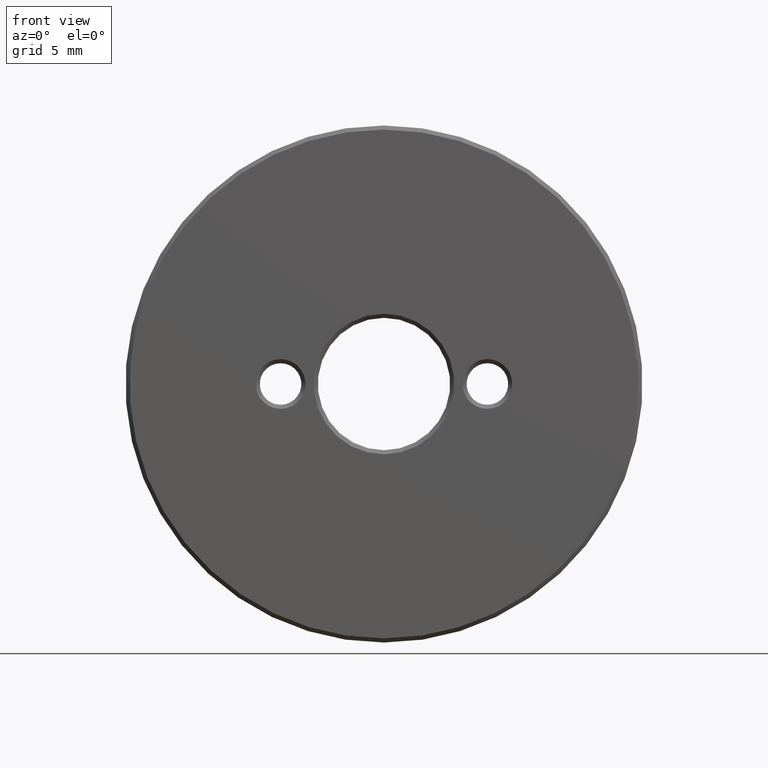
[diagram: clean part render]
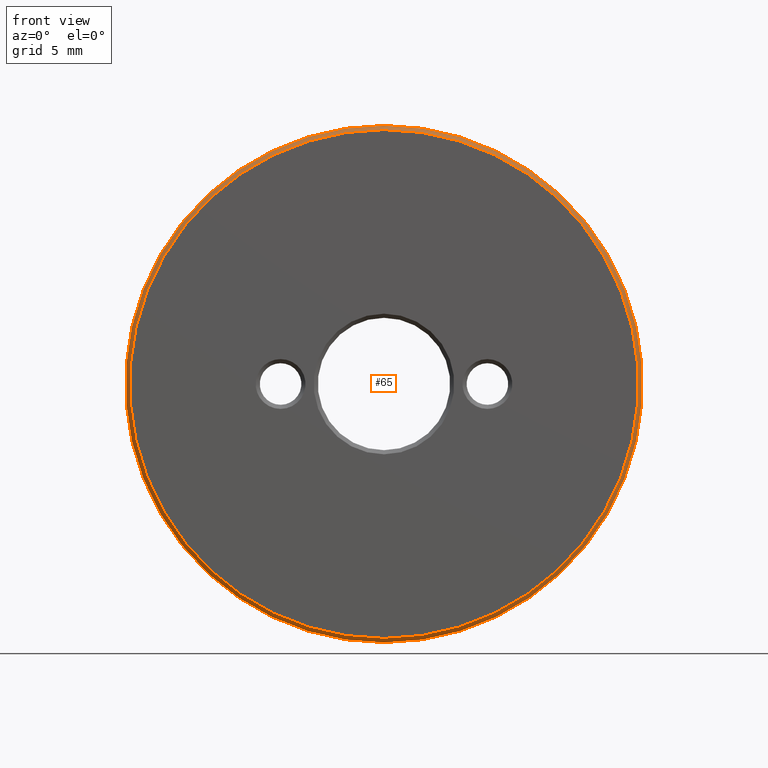
[diagram: same view with one face highlighted and labeled with its STEP entity id]
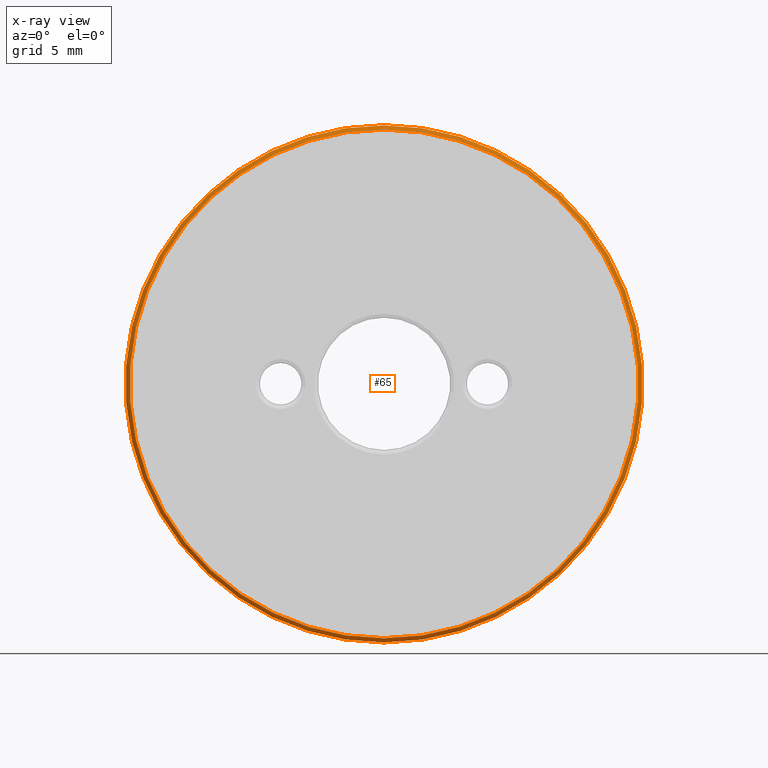
[diagram: x-ray of the same camera — body ghosted, the highlighted face saturated]
A machine part, front view. The second image highlights one B-rep face of the part: STEP entity #65.
The next image is the same camera in x-ray: the body ghosted, the highlighted face saturated — about 0% of this face is hidden behind the body in this view.
In plain terms, the highlighted conical surface has half-angle 45 deg.
Its self-contained STEP definition (entity closure, byte-faithful):
#2 = VERTEX_POINT ( 'NONE', #27 ) ;
#14 = CARTESIAN_POINT ( 'NONE',  ( 0.000000000000000000, 0.000000000000000000, 0.000000000000000000 ) ) ;
#20 = FACE_OUTER_BOUND ( 'NONE', #176, .T. ) ;
#24 = EDGE_CURVE ( 'NONE', #2, #2, #38, .T. ) ;
#27 = CARTESIAN_POINT ( 'NONE',  ( 0.000000000000000000, 0.000000000000000000, 12.29999999999999893 ) ) ;
#38 = CIRCLE ( 'NONE', #382, 12.29999999999999893 ) ;
#51 = DIRECTION ( 'NONE',  ( 0.000000000000000000, 0.000000000000000000, 1.000000000000000000 ) ) ;
#56 = ORIENTED_EDGE ( 'NONE', *, *, #312, .F. ) ;
#65 = ADVANCED_FACE ( 'NONE', ( #350, #20 ), #280, .T. ) ;
#78 = DIRECTION ( 'NONE',  ( 0.000000000000000000, 0.000000000000000000, 1.000000000000000000 ) ) ;
#93 = CIRCLE ( 'NONE', #219, 12.50000000000000000 ) ;
#115 = CARTESIAN_POINT ( 'NONE',  ( 0.000000000000000000, 0.2000000000000022593, 0.000000000000000000 ) ) ;
#140 = DIRECTION ( 'NONE',  ( 0.000000000000000000, 0.000000000000000000, 1.000000000000000000 ) ) ;
#144 = CARTESIAN_POINT ( 'NONE',  ( 0.000000000000000000, 0.2000000000000022593, 12.50000000000000000 ) ) ;
#173 = EDGE_LOOP ( 'NONE', ( #381 ) ) ;
#176 = EDGE_LOOP ( 'NONE', ( #56 ) ) ;
#177 = VERTEX_POINT ( 'NONE', #144 ) ;
#219 = AXIS2_PLACEMENT_3D ( 'NONE', #292, #223, #51 ) ;
#223 = DIRECTION ( 'NONE',  ( -0.000000000000000000, 1.000000000000000000, -0.000000000000000000 ) ) ;
#280 = CONICAL_SURFACE ( 'NONE', #310, 12.50000000000000000, 0.7853981633974482790 ) ;
#292 = CARTESIAN_POINT ( 'NONE',  ( 0.000000000000000000, 0.2000000000000022593, 0.000000000000000000 ) ) ;
#295 = DIRECTION ( 'NONE',  ( -0.000000000000000000, 1.000000000000000000, -0.000000000000000000 ) ) ;
#310 = AXIS2_PLACEMENT_3D ( 'NONE', #115, #295, #140 ) ;
#312 = EDGE_CURVE ( 'NONE', #177, #177, #93, .T. ) ;
#350 = FACE_BOUND ( 'NONE', #173, .T. ) ;
#351 = DIRECTION ( 'NONE',  ( -0.000000000000000000, -1.000000000000000000, -0.000000000000000000 ) ) ;
#381 = ORIENTED_EDGE ( 'NONE', *, *, #24, .F. ) ;
#382 = AXIS2_PLACEMENT_3D ( 'NONE', #14, #351, #78 ) ;